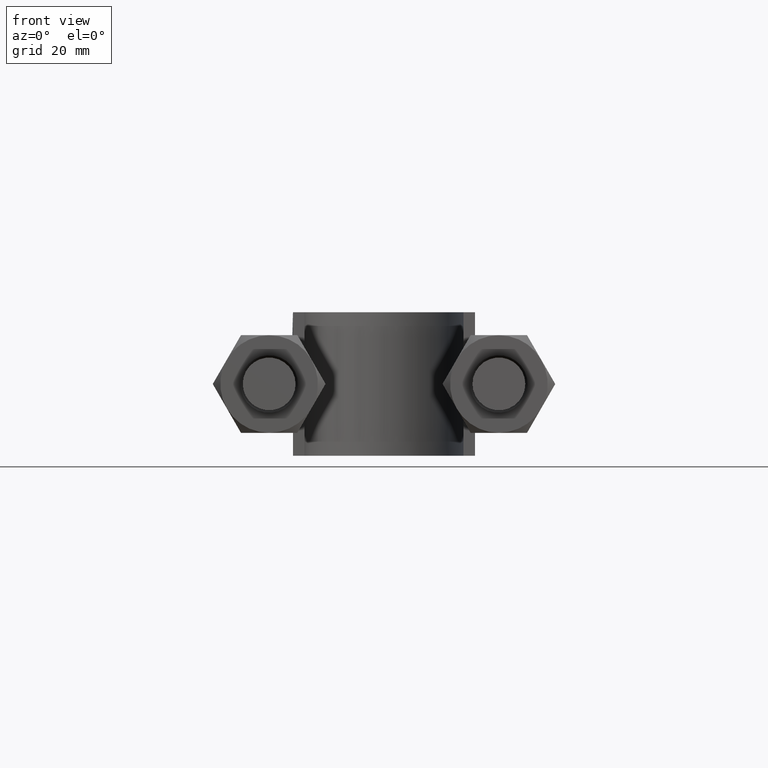
[diagram: clean part render]
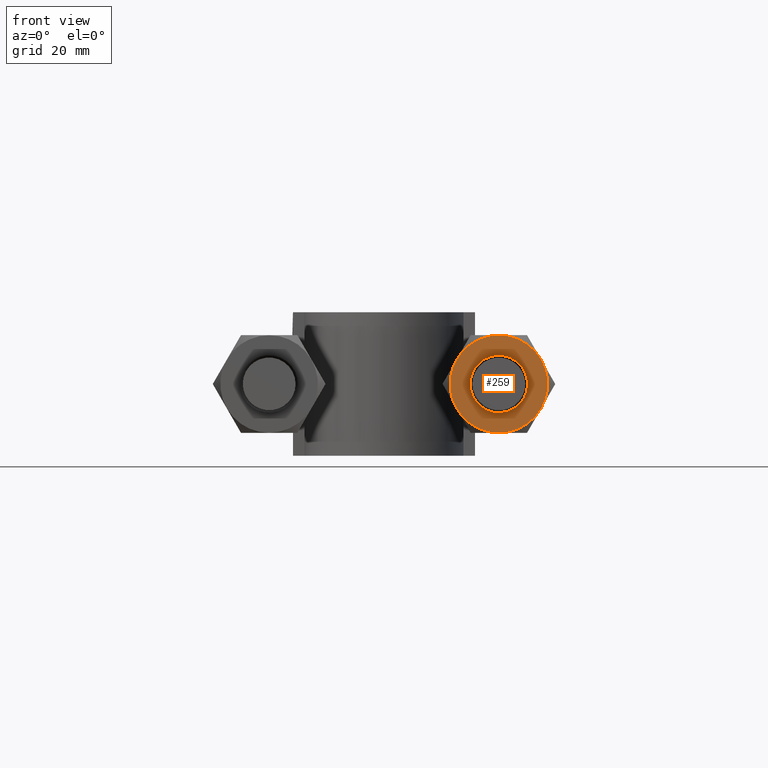
[diagram: same view with one face highlighted and labeled with its STEP entity id]
A machine part, front view. The second image highlights one B-rep face of the part: STEP entity #259.
In plain terms, the highlighted planar face has unit normal (0, 1, 0).
Its self-contained STEP definition (entity closure, byte-faithful):
#259 = ADVANCED_FACE( '', ( #377, #378 ), #379, .F. );
#377 = FACE_OUTER_BOUND( '', #1399, .T. );
#378 = FACE_BOUND( '', #1400, .T. );
#379 = PLANE( '', #1401 );
#1399 = EDGE_LOOP( '', ( #1743, #1744, #1745, #1746, #1747, #1748 ) );
#1400 = EDGE_LOOP( '', ( #1749 ) );
#1401 = AXIS2_PLACEMENT_3D( '', #1750, #1751, #1752 );
#1743 = ORIENTED_EDGE( '', *, *, #1987, .F. );
#1744 = ORIENTED_EDGE( '', *, *, #1988, .F. );
#1745 = ORIENTED_EDGE( '', *, *, #1989, .F. );
#1746 = ORIENTED_EDGE( '', *, *, #1990, .F. );
#1747 = ORIENTED_EDGE( '', *, *, #1985, .F. );
#1748 = ORIENTED_EDGE( '', *, *, #1991, .F. );
#1749 = ORIENTED_EDGE( '', *, *, #1992, .T. );
#1750 = CARTESIAN_POINT( '', ( 20.0000000000000, 20.0000000000000, 6.22440467223928E-016 ) );
#1751 = DIRECTION( '', ( 4.89842541528951E-016, 1.00000000000000, 6.12303176911189E-017 ) );
#1752 = DIRECTION( '', ( -0.866025403784439, 3.93600925972846E-016, 0.500000000000000 ) );
#1985 = EDGE_CURVE( '', #2164, #2166, #2167, .T. );
#1987 = EDGE_CURVE( '', #2169, #2170, #2171, .T. );
#1988 = EDGE_CURVE( '', #2172, #2169, #2173, .T. );
#1989 = EDGE_CURVE( '', #2174, #2172, #2175, .T. );
#1990 = EDGE_CURVE( '', #2166, #2174, #2176, .T. );
#1991 = EDGE_CURVE( '', #2170, #2164, #2177, .T. );
#1992 = EDGE_CURVE( '', #2178, #2178, #2179, .T. );
#2164 = VERTEX_POINT( '', #2650 );
#2166 = VERTEX_POINT( '', #2657 );
#2167 = CIRCLE( '', #2658, 8.50000000000000 );
#2169 = VERTEX_POINT( '', #2667 );
#2170 = VERTEX_POINT( '', #2668 );
#2171 = CIRCLE( '', #2669, 8.50000000000000 );
#2172 = VERTEX_POINT( '', #2670 );
#2173 = CIRCLE( '', #2671, 8.50000000000000 );
#2174 = VERTEX_POINT( '', #2672 );
#2175 = CIRCLE( '', #2673, 8.50000000000000 );
#2176 = CIRCLE( '', #2674, 8.50000000000000 );
#2177 = CIRCLE( '', #2675, 8.50000000000000 );
#2178 = VERTEX_POINT( '', #2676 );
#2179 = CIRCLE( '', #2677, 5.00000000000000 );
#2650 = CARTESIAN_POINT( '', ( 27.3612159321677, 20.0000000000000, -4.25000000000000 ) );
#2657 = CARTESIAN_POINT( '', ( 20.0000000000000, 20.0000000000000, -8.50000000000000 ) );
#2658 = AXIS2_PLACEMENT_3D( '', #2924, #2925, #2926 );
#2667 = CARTESIAN_POINT( '', ( 20.0000000000000, 20.0000000000000, 8.50000000000000 ) );
#2668 = CARTESIAN_POINT( '', ( 27.3612159321677, 20.0000000000000, 4.25000000000000 ) );
#2669 = AXIS2_PLACEMENT_3D( '', #2927, #2928, #2929 );
#2670 = CARTESIAN_POINT( '', ( 12.6387840678323, 20.0000000000000, 4.25000000000000 ) );
#2671 = AXIS2_PLACEMENT_3D( '', #2930, #2931, #2932 );
#2672 = CARTESIAN_POINT( '', ( 12.6387840678323, 20.0000000000000, -4.25000000000000 ) );
#2673 = AXIS2_PLACEMENT_3D( '', #2933, #2934, #2935 );
#2674 = AXIS2_PLACEMENT_3D( '', #2936, #2937, #2938 );
#2675 = AXIS2_PLACEMENT_3D( '', #2939, #2940, #2941 );
#2676 = CARTESIAN_POINT( '', ( 15.6698729810778, 20.0000000000000, 2.50000000000000 ) );
#2677 = AXIS2_PLACEMENT_3D( '', #2942, #2943, #2944 );
#2924 = CARTESIAN_POINT( '', ( 20.0000000000000, 20.0000000000000, 6.22440467223928E-016 ) );
#2925 = DIRECTION( '', ( 4.89842541528951E-016, 1.00000000000000, 6.12303176911189E-017 ) );
#2926 = DIRECTION( '', ( -0.866025403784439, 3.93600925972846E-016, 0.500000000000000 ) );
#2927 = CARTESIAN_POINT( '', ( 20.0000000000000, 20.0000000000000, 6.22440467223928E-016 ) );
#2928 = DIRECTION( '', ( 4.89842541528951E-016, 1.00000000000000, 6.12303176911189E-017 ) );
#2929 = DIRECTION( '', ( -0.866025403784439, 3.93600925972846E-016, 0.500000000000000 ) );
#2930 = CARTESIAN_POINT( '', ( 20.0000000000000, 20.0000000000000, 6.22440467223928E-016 ) );
#2931 = DIRECTION( '', ( 4.89842541528951E-016, 1.00000000000000, 6.12303176911189E-017 ) );
#2932 = DIRECTION( '', ( -0.866025403784439, 3.93600925972846E-016, 0.500000000000000 ) );
#2933 = CARTESIAN_POINT( '', ( 20.0000000000000, 20.0000000000000, 6.22440467223928E-016 ) );
#2934 = DIRECTION( '', ( 4.89842541528951E-016, 1.00000000000000, 6.12303176911189E-017 ) );
#2935 = DIRECTION( '', ( -0.866025403784439, 3.93600925972846E-016, 0.500000000000000 ) );
#2936 = CARTESIAN_POINT( '', ( 20.0000000000000, 20.0000000000000, 6.22440467223928E-016 ) );
#2937 = DIRECTION( '', ( 4.89842541528951E-016, 1.00000000000000, 6.12303176911189E-017 ) );
#2938 = DIRECTION( '', ( -0.866025403784439, 3.93600925972846E-016, 0.500000000000000 ) );
#2939 = CARTESIAN_POINT( '', ( 20.0000000000000, 20.0000000000000, 6.22440467223928E-016 ) );
#2940 = DIRECTION( '', ( 4.89842541528951E-016, 1.00000000000000, 6.12303176911189E-017 ) );
#2941 = DIRECTION( '', ( -0.866025403784439, 3.93600925972846E-016, 0.500000000000000 ) );
#2942 = CARTESIAN_POINT( '', ( 20.0000000000000, 20.0000000000000, 6.22440467223928E-016 ) );
#2943 = DIRECTION( '', ( 4.89842541528951E-016, 1.00000000000000, 6.12303176911189E-017 ) );
#2944 = DIRECTION( '', ( -0.866025403784439, 3.93600925972846E-016, 0.500000000000000 ) );